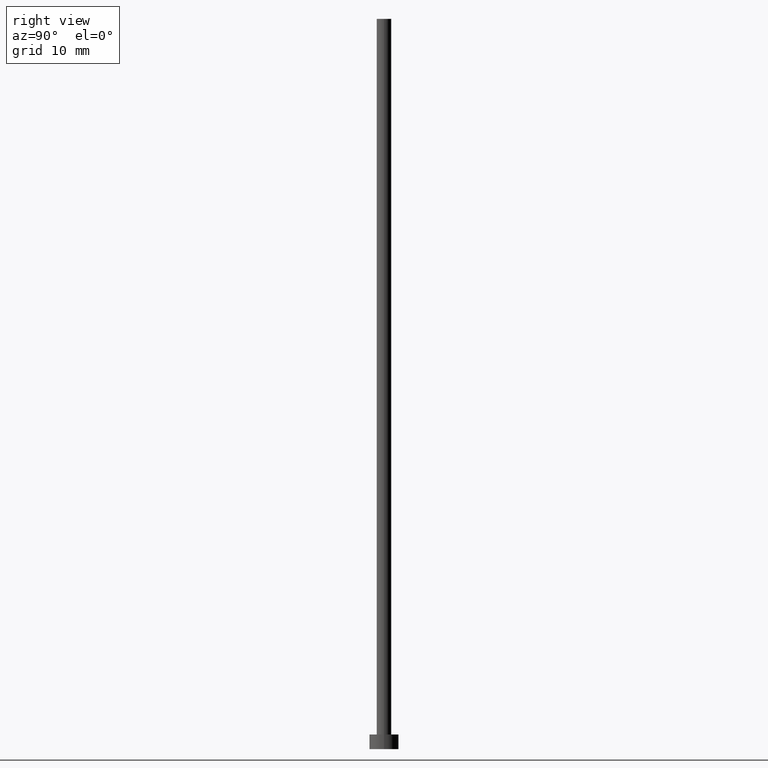
[diagram: clean part render]
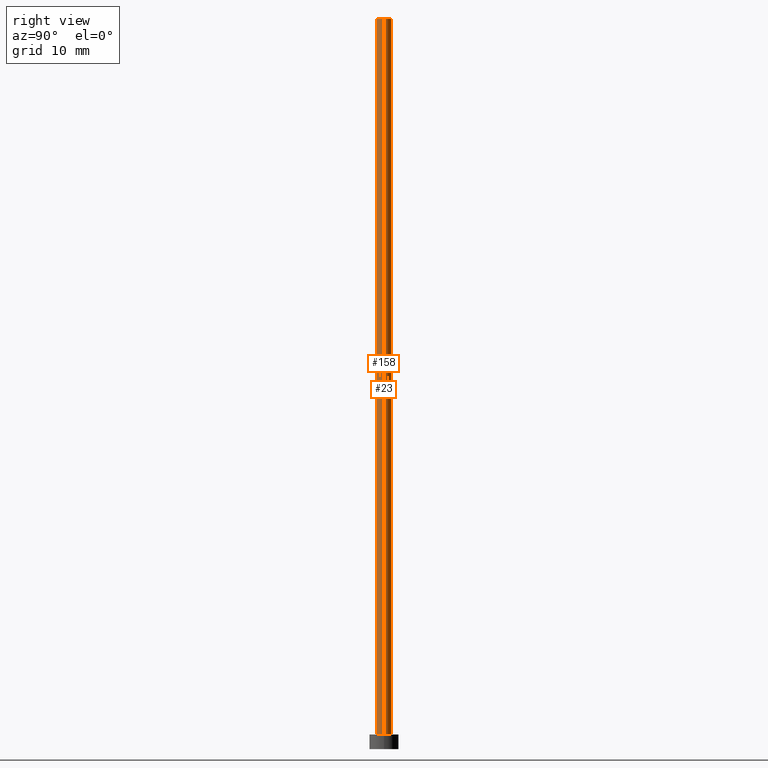
[diagram: same view with one multi-face feature highlighted, each face labeled with its STEP entity id]
A machine part, right view. The highlighted faces form ONE feature: a constant-radius fillet chain: 2 tangent blend faces with common blend radius 1 mm. The faces share edges in the B-rep.
Their STEP definitions:
[1] entity #158 (Cylinder):
#3 = VECTOR ( 'NONE', #117, 1000.000000000000000 ) ;
#4 = EDGE_CURVE ( 'NONE', #66, #193, #75, .T. ) ;
#11 = ORIENTED_EDGE ( 'NONE', *, *, #214, .F. ) ;
#18 = FACE_OUTER_BOUND ( 'NONE', #81, .T. ) ;
#28 = VECTOR ( 'NONE', #168, 1000.000000000000000 ) ;
#31 = ORIENTED_EDGE ( 'NONE', *, *, #224, .T. ) ;
#51 = DIRECTION ( 'NONE',  ( -1.000000000000000000, 0.000000000000000000, 0.000000000000000000 ) ) ;
#53 = CARTESIAN_POINT ( 'NONE',  ( 0.000000000000000000, 0.000000000000000000, 100.0000000000000000 ) ) ;
#66 = VERTEX_POINT ( 'NONE', #156 ) ;
#68 = AXIS2_PLACEMENT_3D ( 'NONE', #253, #135, #152 ) ;
#74 = CARTESIAN_POINT ( 'NONE',  ( 1.000000000000000000, 1.224646799147353207E-16, 100.0000000000000000 ) ) ;
#75 = CIRCLE ( 'NONE', #225, 1.000000000000000000 ) ;
#81 = EDGE_LOOP ( 'NONE', ( #11, #88, #31, #167 ) ) ;
#84 = DIRECTION ( 'NONE',  ( 0.000000000000000000, 0.000000000000000000, 1.000000000000000000 ) ) ;
#88 = ORIENTED_EDGE ( 'NONE', *, *, #96, .F. ) ;
#96 = EDGE_CURVE ( 'NONE', #191, #169, #252, .T. ) ;
#109 = AXIS2_PLACEMENT_3D ( 'NONE', #53, #153, #51 ) ;
#117 = DIRECTION ( 'NONE',  ( -0.000000000000000000, -0.000000000000000000, -1.000000000000000000 ) ) ;
#135 = DIRECTION ( 'NONE',  ( 0.000000000000000000, 0.000000000000000000, 1.000000000000000000 ) ) ;
#137 = LINE ( 'NONE', #192, #28 ) ;
#152 = DIRECTION ( 'NONE',  ( 1.000000000000000000, 0.000000000000000000, 0.000000000000000000 ) ) ;
#153 = DIRECTION ( 'NONE',  ( -0.000000000000000000, -0.000000000000000000, -1.000000000000000000 ) ) ;
#156 = CARTESIAN_POINT ( 'NONE',  ( -1.000000000000000000, 0.000000000000000000, 2.000000000000000000 ) ) ;
#158 = ADVANCED_FACE ( 'NONE', ( #18 ), #177, .T. ) ;
#162 = DIRECTION ( 'NONE',  ( 1.000000000000000000, 0.000000000000000000, 0.000000000000000000 ) ) ;
#167 = ORIENTED_EDGE ( 'NONE', *, *, #4, .T. ) ;
#168 = DIRECTION ( 'NONE',  ( -0.000000000000000000, -0.000000000000000000, -1.000000000000000000 ) ) ;
#169 = VERTEX_POINT ( 'NONE', #74 ) ;
#177 = CYLINDRICAL_SURFACE ( 'NONE', #109, 1.000000000000000000 ) ;
#191 = VERTEX_POINT ( 'NONE', #237 ) ;
#192 = CARTESIAN_POINT ( 'NONE',  ( 1.000000000000000000, 1.224646799147353207E-16, 100.0000000000000000 ) ) ;
#193 = VERTEX_POINT ( 'NONE', #231 ) ;
#198 = CARTESIAN_POINT ( 'NONE',  ( -1.000000000000000000, 0.000000000000000000, 100.0000000000000000 ) ) ;
#210 = LINE ( 'NONE', #198, #3 ) ;
#214 = EDGE_CURVE ( 'NONE', #169, #193, #137, .T. ) ;
#224 = EDGE_CURVE ( 'NONE', #191, #66, #210, .T. ) ;
#225 = AXIS2_PLACEMENT_3D ( 'NONE', #238, #84, #162 ) ;
#231 = CARTESIAN_POINT ( 'NONE',  ( 1.000000000000000000, 1.224646799147353207E-16, 2.000000000000000000 ) ) ;
#237 = CARTESIAN_POINT ( 'NONE',  ( -1.000000000000000000, 0.000000000000000000, 100.0000000000000000 ) ) ;
#238 = CARTESIAN_POINT ( 'NONE',  ( 0.000000000000000000, 0.000000000000000000, 2.000000000000000000 ) ) ;
#252 = CIRCLE ( 'NONE', #68, 1.000000000000000000 ) ;
#253 = CARTESIAN_POINT ( 'NONE',  ( 0.000000000000000000, 0.000000000000000000, 100.0000000000000000 ) ) ;
[2] entity #23 (Cylinder):
#3 = VECTOR ( 'NONE', #117, 1000.000000000000000 ) ;
#6 = CYLINDRICAL_SURFACE ( 'NONE', #13, 1.000000000000000000 ) ;
#13 = AXIS2_PLACEMENT_3D ( 'NONE', #86, #242, #33 ) ;
#22 = DIRECTION ( 'NONE',  ( 0.000000000000000000, 0.000000000000000000, 1.000000000000000000 ) ) ;
#23 = ADVANCED_FACE ( 'NONE', ( #65 ), #6, .T. ) ;
#28 = VECTOR ( 'NONE', #168, 1000.000000000000000 ) ;
#29 = ORIENTED_EDGE ( 'NONE', *, *, #243, .T. ) ;
#33 = DIRECTION ( 'NONE',  ( -1.000000000000000000, 0.000000000000000000, 0.000000000000000000 ) ) ;
#48 = DIRECTION ( 'NONE',  ( 0.000000000000000000, 0.000000000000000000, 1.000000000000000000 ) ) ;
#65 = FACE_OUTER_BOUND ( 'NONE', #90, .T. ) ;
#66 = VERTEX_POINT ( 'NONE', #156 ) ;
#70 = ORIENTED_EDGE ( 'NONE', *, *, #145, .F. ) ;
#74 = CARTESIAN_POINT ( 'NONE',  ( 1.000000000000000000, 1.224646799147353207E-16, 100.0000000000000000 ) ) ;
#76 = ORIENTED_EDGE ( 'NONE', *, *, #224, .F. ) ;
#86 = CARTESIAN_POINT ( 'NONE',  ( 0.000000000000000000, 0.000000000000000000, 100.0000000000000000 ) ) ;
#90 = EDGE_LOOP ( 'NONE', ( #70, #227, #29, #76 ) ) ;
#94 = AXIS2_PLACEMENT_3D ( 'NONE', #245, #22, #163 ) ;
#108 = CIRCLE ( 'NONE', #147, 1.000000000000000000 ) ;
#117 = DIRECTION ( 'NONE',  ( -0.000000000000000000, -0.000000000000000000, -1.000000000000000000 ) ) ;
#137 = LINE ( 'NONE', #192, #28 ) ;
#145 = EDGE_CURVE ( 'NONE', #169, #191, #108, .T. ) ;
#147 = AXIS2_PLACEMENT_3D ( 'NONE', #175, #48, #195 ) ;
#156 = CARTESIAN_POINT ( 'NONE',  ( -1.000000000000000000, 0.000000000000000000, 2.000000000000000000 ) ) ;
#163 = DIRECTION ( 'NONE',  ( 1.000000000000000000, 0.000000000000000000, 0.000000000000000000 ) ) ;
#168 = DIRECTION ( 'NONE',  ( -0.000000000000000000, -0.000000000000000000, -1.000000000000000000 ) ) ;
#169 = VERTEX_POINT ( 'NONE', #74 ) ;
#175 = CARTESIAN_POINT ( 'NONE',  ( 0.000000000000000000, 0.000000000000000000, 100.0000000000000000 ) ) ;
#191 = VERTEX_POINT ( 'NONE', #237 ) ;
#192 = CARTESIAN_POINT ( 'NONE',  ( 1.000000000000000000, 1.224646799147353207E-16, 100.0000000000000000 ) ) ;
#193 = VERTEX_POINT ( 'NONE', #231 ) ;
#195 = DIRECTION ( 'NONE',  ( 1.000000000000000000, 0.000000000000000000, 0.000000000000000000 ) ) ;
#198 = CARTESIAN_POINT ( 'NONE',  ( -1.000000000000000000, 0.000000000000000000, 100.0000000000000000 ) ) ;
#203 = CIRCLE ( 'NONE', #94, 1.000000000000000000 ) ;
#210 = LINE ( 'NONE', #198, #3 ) ;
#214 = EDGE_CURVE ( 'NONE', #169, #193, #137, .T. ) ;
#224 = EDGE_CURVE ( 'NONE', #191, #66, #210, .T. ) ;
#227 = ORIENTED_EDGE ( 'NONE', *, *, #214, .T. ) ;
#231 = CARTESIAN_POINT ( 'NONE',  ( 1.000000000000000000, 1.224646799147353207E-16, 2.000000000000000000 ) ) ;
#237 = CARTESIAN_POINT ( 'NONE',  ( -1.000000000000000000, 0.000000000000000000, 100.0000000000000000 ) ) ;
#242 = DIRECTION ( 'NONE',  ( -0.000000000000000000, -0.000000000000000000, -1.000000000000000000 ) ) ;
#243 = EDGE_CURVE ( 'NONE', #193, #66, #203, .T. ) ;
#245 = CARTESIAN_POINT ( 'NONE',  ( 0.000000000000000000, 0.000000000000000000, 2.000000000000000000 ) ) ;